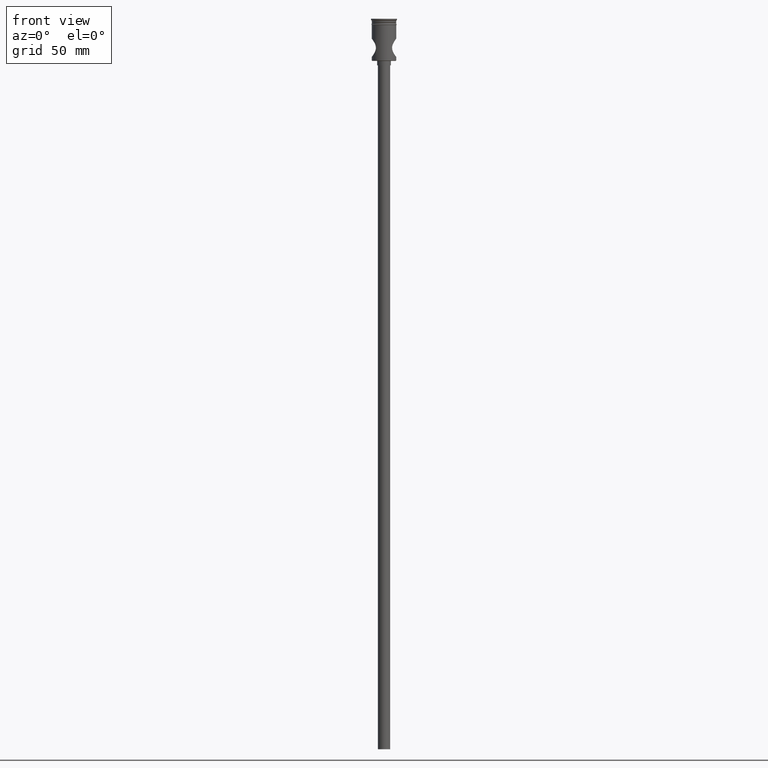
[diagram: clean part render]
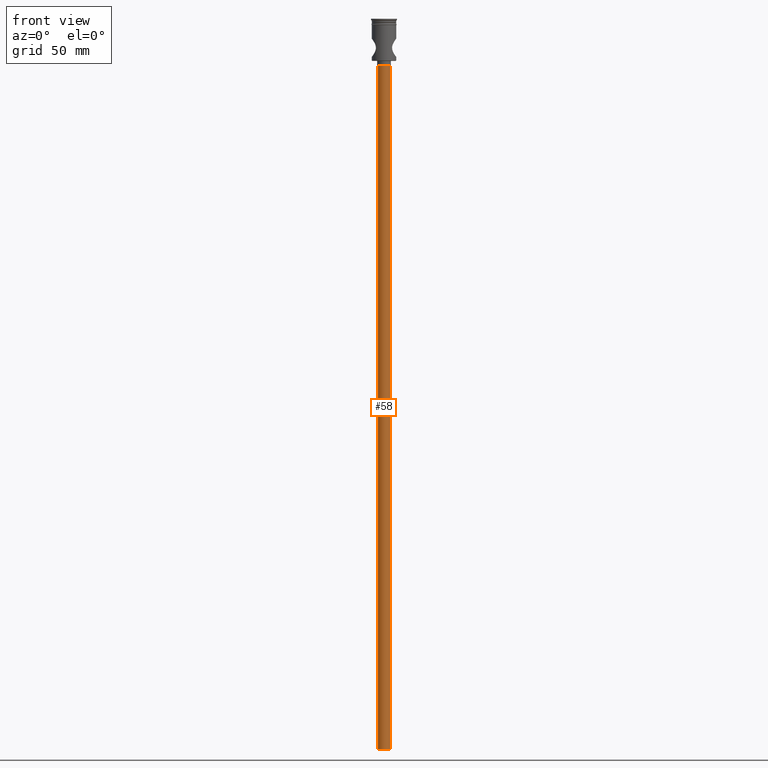
[diagram: same view with one face highlighted and labeled with its STEP entity id]
A machine part, front view. The second image highlights one B-rep face of the part: STEP entity #58.
In plain terms, the highlighted cylindrical surface (edge-blend (fillet) strip) has radius 4 mm, axis along (-0, -0, 1).
Its self-contained STEP definition (entity closure, byte-faithful):
#11 = CIRCLE ( 'NONE', #216, 4.000000000000000000 ) ;
#29 = CARTESIAN_POINT ( 'NONE',  ( -4.000000000000000000, 4.898587196589412829E-16, -477.5000000000000568 ) ) ;
#39 = VECTOR ( 'NONE', #585, 1000.000000000000000 ) ;
#58 = ADVANCED_FACE ( 'NONE', ( #672 ), #557, .T. ) ;
#81 = ORIENTED_EDGE ( 'NONE', *, *, #1197, .F. ) ;
#142 = VERTEX_POINT ( 'NONE', #29 ) ;
#147 = EDGE_CURVE ( 'NONE', #142, #1393, #1285, .T. ) ;
#151 = EDGE_LOOP ( 'NONE', ( #1422, #81, #1066, #483 ) ) ;
#216 = AXIS2_PLACEMENT_3D ( 'NONE', #1434, #953, #961 ) ;
#254 = VERTEX_POINT ( 'NONE', #408 ) ;
#267 = CARTESIAN_POINT ( 'NONE',  ( -4.000000000000000000, 4.898587196589412829E-16, -30.50000000000000000 ) ) ;
#369 = AXIS2_PLACEMENT_3D ( 'NONE', #461, #1009, #797 ) ;
#408 = CARTESIAN_POINT ( 'NONE',  ( 4.000000000000000000, 0.000000000000000000, -30.50000000000000000 ) ) ;
#461 = CARTESIAN_POINT ( 'NONE',  ( 0.000000000000000000, 0.000000000000000000, -477.5000000000000568 ) ) ;
#474 = CIRCLE ( 'NONE', #802, 4.000000000000000000 ) ;
#483 = ORIENTED_EDGE ( 'NONE', *, *, #625, .T. ) ;
#557 = CYLINDRICAL_SURFACE ( 'NONE', #369, 4.000000000000000000 ) ;
#585 = DIRECTION ( 'NONE',  ( -0.000000000000000000, -0.000000000000000000, 1.000000000000000000 ) ) ;
#625 = EDGE_CURVE ( 'NONE', #254, #1393, #11, .T. ) ;
#653 = DIRECTION ( 'NONE',  ( 0.000000000000000000, 0.000000000000000000, -1.000000000000000000 ) ) ;
#672 = FACE_OUTER_BOUND ( 'NONE', #151, .T. ) ;
#745 = CARTESIAN_POINT ( 'NONE',  ( -4.000000000000000000, 4.898587196589412829E-16, -477.5000000000000568 ) ) ;
#797 = DIRECTION ( 'NONE',  ( 1.000000000000000000, 0.000000000000000000, 0.000000000000000000 ) ) ;
#802 = AXIS2_PLACEMENT_3D ( 'NONE', #1123, #653, #1002 ) ;
#953 = DIRECTION ( 'NONE',  ( 0.000000000000000000, 0.000000000000000000, -1.000000000000000000 ) ) ;
#961 = DIRECTION ( 'NONE',  ( -1.000000000000000000, 0.000000000000000000, 0.000000000000000000 ) ) ;
#1002 = DIRECTION ( 'NONE',  ( -1.000000000000000000, 0.000000000000000000, 0.000000000000000000 ) ) ;
#1009 = DIRECTION ( 'NONE',  ( -0.000000000000000000, -0.000000000000000000, 1.000000000000000000 ) ) ;
#1066 = ORIENTED_EDGE ( 'NONE', *, *, #1300, .T. ) ;
#1077 = VERTEX_POINT ( 'NONE', #1187 ) ;
#1091 = VECTOR ( 'NONE', #1211, 1000.000000000000000 ) ;
#1123 = CARTESIAN_POINT ( 'NONE',  ( 0.000000000000000000, 0.000000000000000000, -477.5000000000000568 ) ) ;
#1187 = CARTESIAN_POINT ( 'NONE',  ( 4.000000000000000000, 0.000000000000000000, -477.5000000000000568 ) ) ;
#1197 = EDGE_CURVE ( 'NONE', #1077, #142, #474, .T. ) ;
#1211 = DIRECTION ( 'NONE',  ( -0.000000000000000000, -0.000000000000000000, 1.000000000000000000 ) ) ;
#1275 = CARTESIAN_POINT ( 'NONE',  ( 4.000000000000000000, 0.000000000000000000, -477.5000000000000568 ) ) ;
#1285 = LINE ( 'NONE', #745, #1091 ) ;
#1300 = EDGE_CURVE ( 'NONE', #1077, #254, #1480, .T. ) ;
#1393 = VERTEX_POINT ( 'NONE', #267 ) ;
#1422 = ORIENTED_EDGE ( 'NONE', *, *, #147, .F. ) ;
#1434 = CARTESIAN_POINT ( 'NONE',  ( 0.000000000000000000, 0.000000000000000000, -30.50000000000000000 ) ) ;
#1480 = LINE ( 'NONE', #1275, #39 ) ;